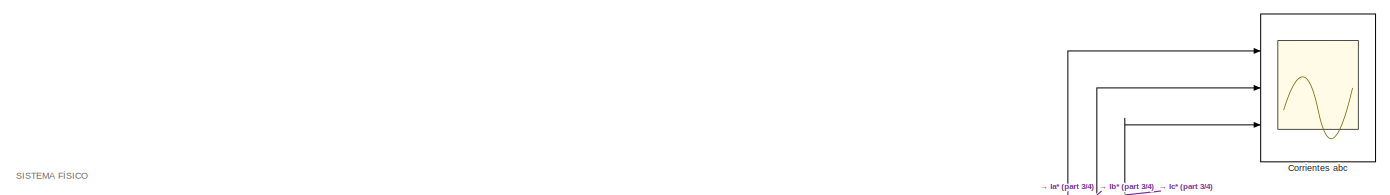
[diagram: root canvas - part 1/4, top right region]
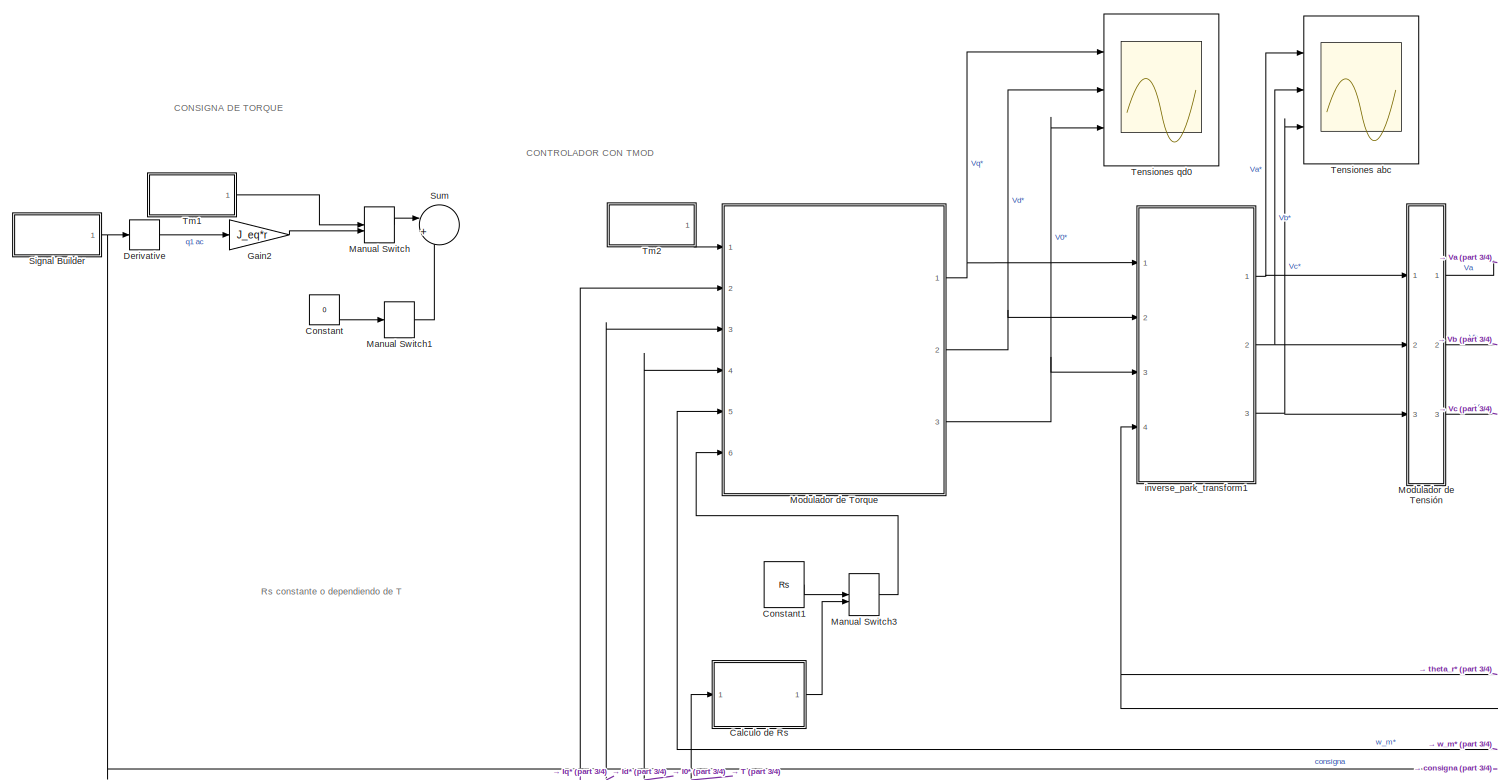
[diagram: root canvas - part 2/4, middle left region]
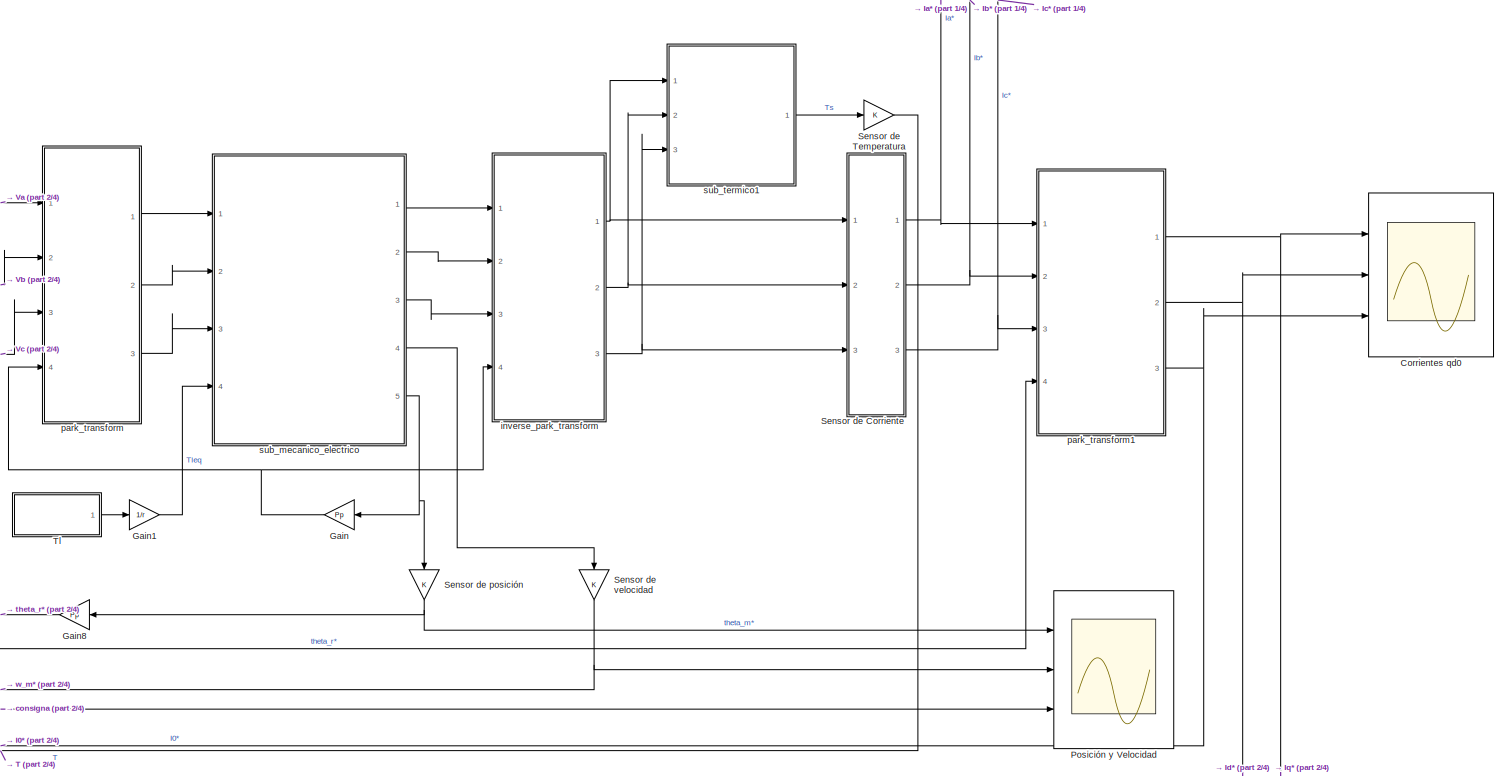
[diagram: root canvas - part 3/4, middle right region]
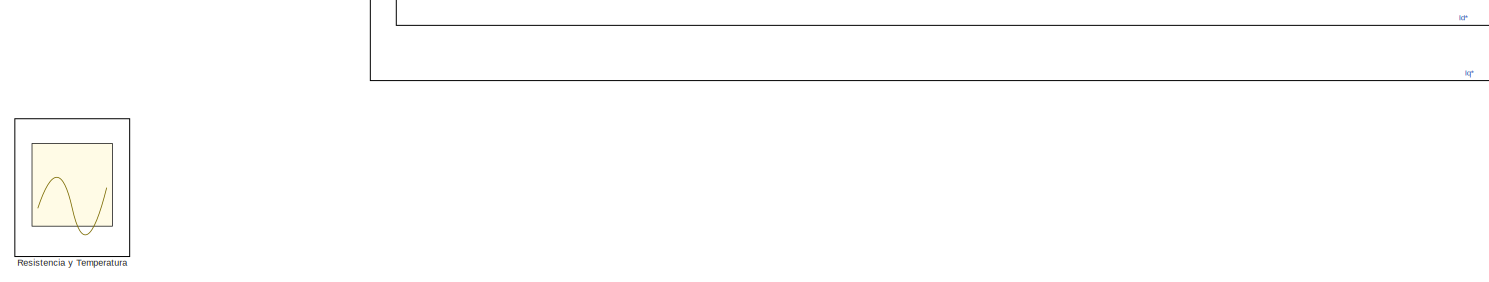
[diagram: root canvas - part 4/4, bottom left region]
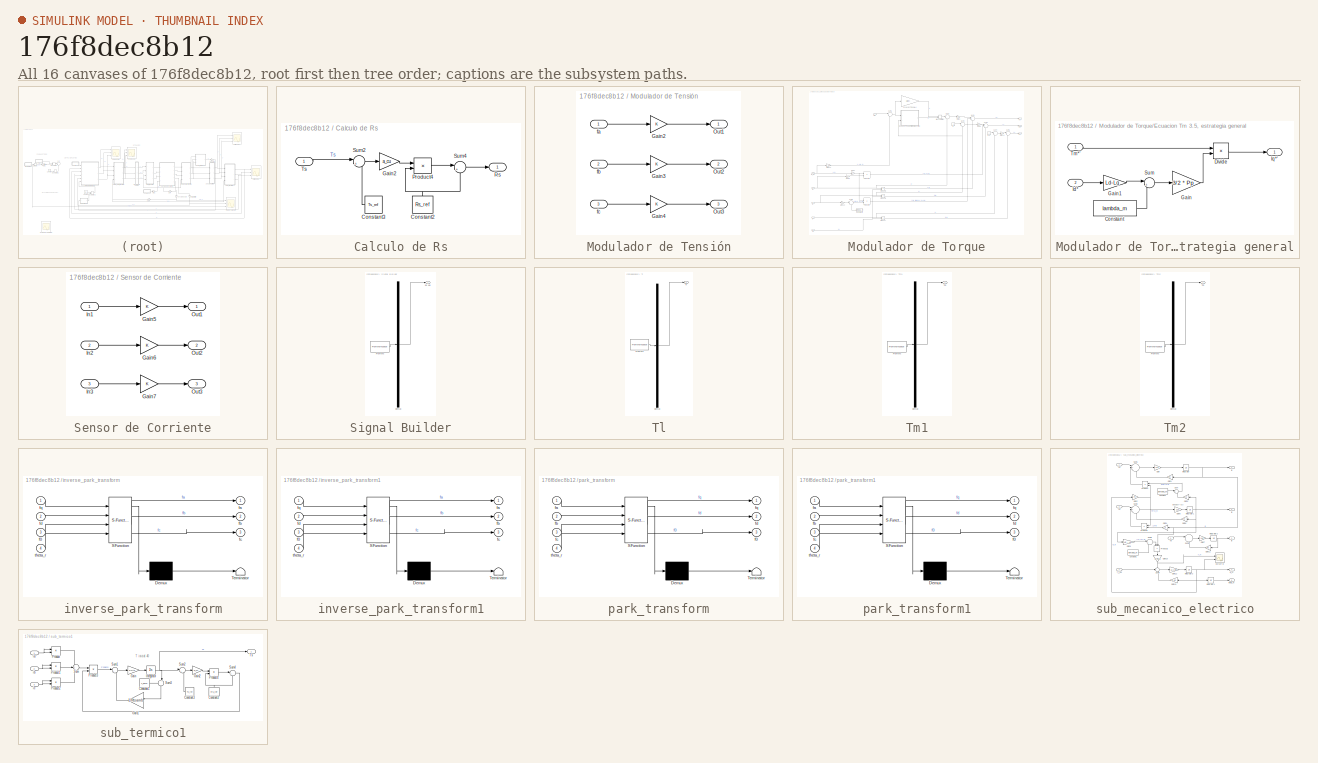
[diagram: thumbnail index - all 16 canvases of the model, root first then tree order]
MODEL slx_176f8dec8b12
KIND model
CONFIG AbsTol = auto
CONFIG EnableMultiTasking = off
CONFIG FixedStep = auto
CONFIG MaxStep = 0.0001
CONFIG MinStep = auto
CONFIG RelTol = 1e-3
CONFIG SampleTimeConstraint = Unconstrained
CONFIG SolverName = VariableStepAuto
CONFIG StartTime = 0.0
CONFIG StopTime = 25
BLOCK [SubSystem] Calculo de Rs
  Ports = [1, 1]
  RequestExecContextInheritance = off
BLOCK [Constant] Calculo de Rs/Constant2
  NameLocation = right
  Value = Rs_ref
BLOCK [Constant] Calculo de Rs/Constant3
  Value = Ts_ref
BLOCK [Gain] Calculo de Rs/Gain2
  Gain = a_cu
BLOCK [Product] Calculo de Rs/Product4
  Ports = [2, 1]
BLOCK [Outport] Calculo de Rs/Rs
BLOCK [Sum] Calculo de Rs/Sum2
  Inputs = |+-
  Ports = [2, 1]
BLOCK [Sum] Calculo de Rs/Sum4
  Inputs = |++
  Ports = [2, 1]
BLOCK [Inport] Calculo de Rs/Ts
BLOCK [Constant] Constant
  Value = 0
BLOCK [Constant] Constant1
  Value = Rs
BLOCK [Scope] Corrientes abc
  Floating = off
  NumInputPorts = 3
  Ports = [3]
  ScopeSpecificationString = Simulink.scopes.TimeScopeBlockCfg('CurrentConfiguration', extmgr.ConfigurationSet(extmgr.Configuration('Core','General UI',true,'FigureColor',[0.156862745098039 0.156862745098039 0.156862745098039]),extmgr.Configuration('Core','Source UI',true),extmgr.Configuration('Sources','WiredSimulink',true,'DataLoggingVariableName','Corrientes_abc','DataLogging',true,'DataLoggingSaveFormat','StructureWithTim...<+1602ch>
BLOCK [Scope] Corrientes qd0
  Floating = off
  NumInputPorts = 3
  Ports = [3]
  ScopeSpecificationString = Simulink.scopes.TimeScopeBlockCfg('CurrentConfiguration', extmgr.ConfigurationSet(extmgr.Configuration('Core','General UI',true,'FigureColor',[0.156862745098039 0.156862745098039 0.156862745098039]),extmgr.Configuration('Core','Source UI',true),extmgr.Configuration('Sources','WiredSimulink',true,'DataLogging',true,'DataLoggingVariableName','Corrientes_qd0','DataLoggingSaveFormat','StructureWithTim...<+1645ch>
BLOCK [Derivative] Derivative
BLOCK [Gain] Gain
  Gain = Pp
BLOCK [Gain] Gain1
  Gain = 1/r
BLOCK [Gain] Gain2
  Gain = J_eq*r
BLOCK [Gain] Gain8
  Gain = Pp
BLOCK [ManualSwitch] Manual Switch
  CurrentSetting = 0
BLOCK [ManualSwitch] Manual Switch1
  CurrentSetting = 0
BLOCK [ManualSwitch] Manual Switch3
  CurrentSetting = 0
BLOCK [SubSystem] Modulador de Tensión
  Ports = [3, 3]
  RequestExecContextInheritance = off
BLOCK [Gain] Modulador de Tensión/Gain2
BLOCK [Gain] Modulador de Tensión/Gain3
BLOCK [Gain] Modulador de Tensión/Gain4
BLOCK [Outport] Modulador de Tensión/Out1
BLOCK [Outport] Modulador de Tensión/Out2
  Port = 2
BLOCK [Outport] Modulador de Tensión/Out3
  Port = 3
BLOCK [Inport] Modulador de Tensión/fa
BLOCK [Inport] Modulador de Tensión/fb
  Port = 2
BLOCK [Inport] Modulador de Tensión/fc
  Port = 3
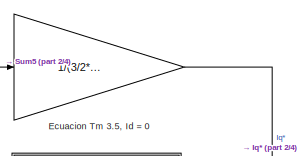
[diagram: Modulador de Torque - part 1/4, top center region]
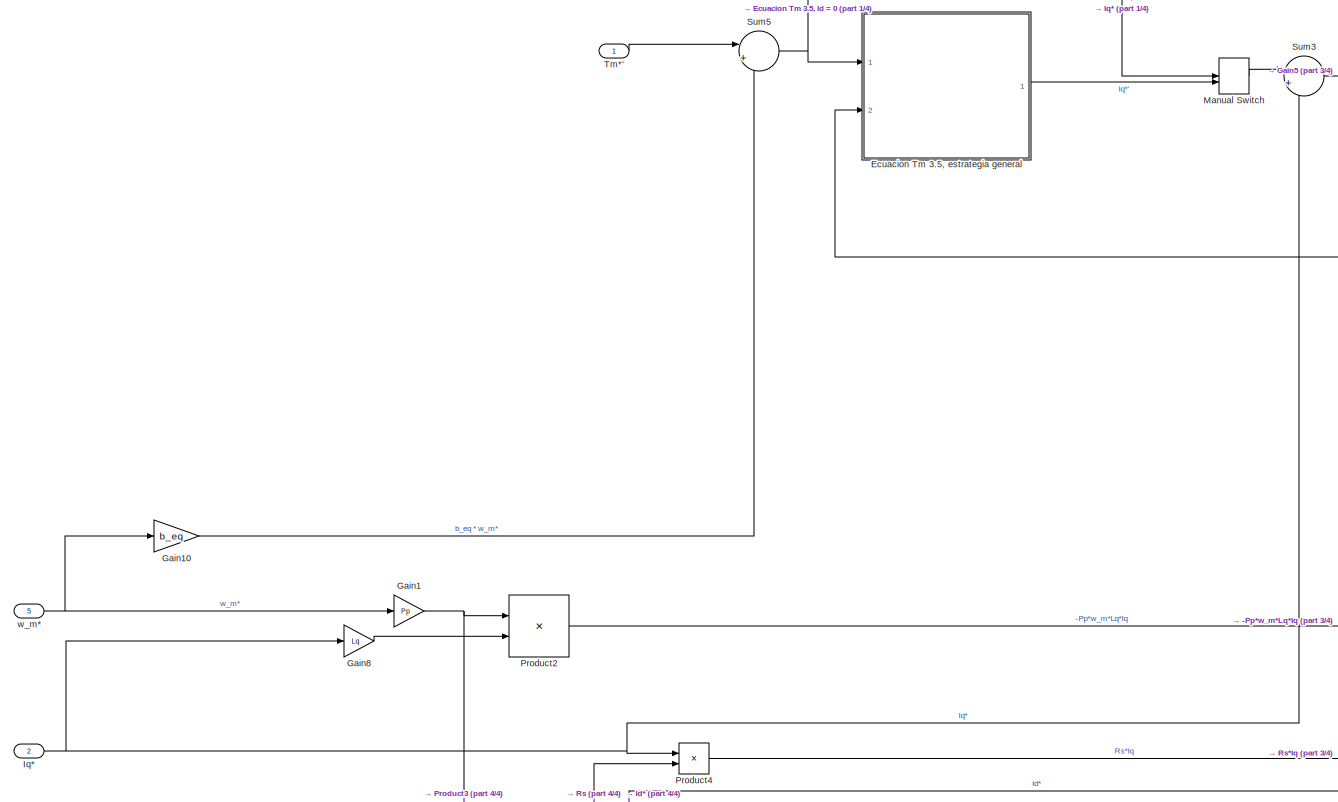
[diagram: Modulador de Torque - part 2/4, middle left region]
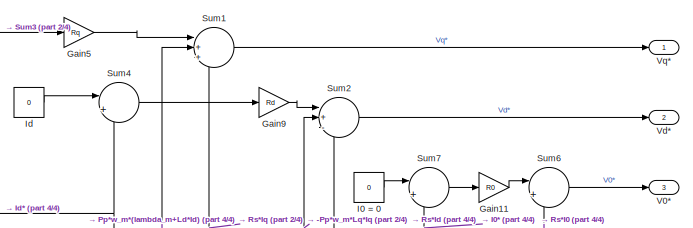
[diagram: Modulador de Torque - part 3/4, top right region]
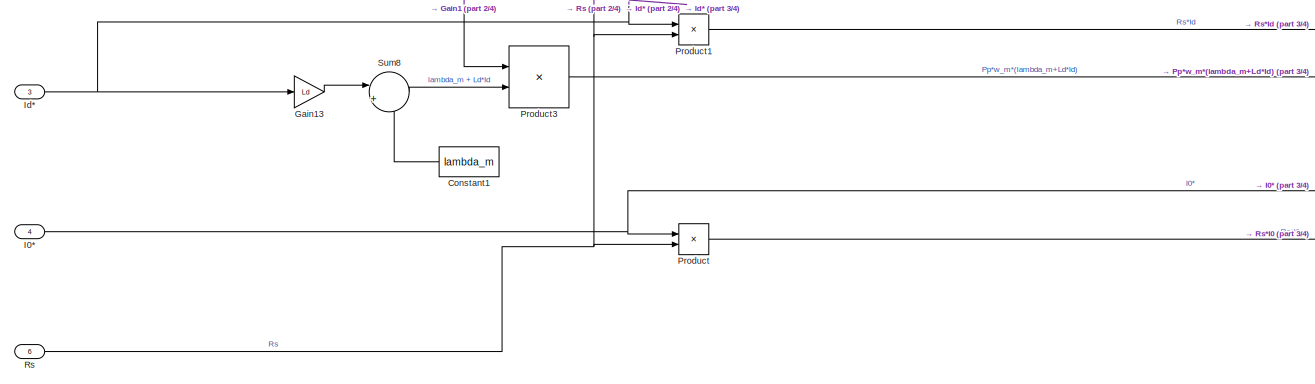
[diagram: Modulador de Torque - part 4/4, bottom left region]
BLOCK [SubSystem] Modulador de Torque
  Ports = [6, 3]
  RequestExecContextInheritance = off
BLOCK [Constant] Modulador de Torque/Constant1
  Value = lambda_m
BLOCK [Gain] Modulador de Torque/Ecuacion Tm 3.5, Id = 0
  Gain = 1/(3/2*Pp*lambda_m)
BLOCK [SubSystem] Modulador de Torque/Ecuacion Tm 3.5, estrategia general
  Ports = [2, 1]
  RequestExecContextInheritance = off
BLOCK [Constant] Modulador de Torque/Ecuacion Tm 3.5, estrategia general/Constant
  Value = lambda_m
BLOCK [Product] Modulador de Torque/Ecuacion Tm 3.5, estrategia general/Divide
  Inputs = */
  Ports = [2, 1]
BLOCK [Gain] Modulador de Torque/Ecuacion Tm 3.5, estrategia general/Gain
  Gain = 3/2 * Pp
BLOCK [Gain] Modulador de Torque/Ecuacion Tm 3.5, estrategia general/Gain1
  Gain = Ld-Lq
BLOCK [Inport] Modulador de Torque/Ecuacion Tm 3.5, estrategia general/Id*
  Port = 2
BLOCK [Outport] Modulador de Torque/Ecuacion Tm 3.5, estrategia general/Iq*'
BLOCK [Sum] Modulador de Torque/Ecuacion Tm 3.5, estrategia general/Sum
  Inputs = |++
  Ports = [2, 1]
BLOCK [Inport] Modulador de Torque/Ecuacion Tm 3.5, estrategia general/Tm*'
BLOCK [Gain] Modulador de Torque/Gain1
  Gain = Pp
BLOCK [Gain] Modulador de Torque/Gain10
  Gain = b_eq
BLOCK [Gain] Modulador de Torque/Gain11
  Gain = R0
BLOCK [Gain] Modulador de Torque/Gain13
  Gain = Ld
BLOCK [Gain] Modulador de Torque/Gain5
  Gain = Rq
BLOCK [Gain] Modulador de Torque/Gain8
  Gain = Lq
BLOCK [Gain] Modulador de Torque/Gain9
  Gain = Rd
BLOCK [Constant] Modulador de Torque/I0 = 0
  Value = 0
BLOCK [Inport] Modulador de Torque/I0*
  Port = 4
BLOCK [Constant] Modulador de Torque/Id
  Value = 0
BLOCK [Inport] Modulador de Torque/Id*
  Port = 3
BLOCK [Inport] Modulador de Torque/Iq*
  Port = 2
BLOCK [ManualSwitch] Modulador de Torque/Manual Switch
  CurrentSetting = 0
BLOCK [Product] Modulador de Torque/Product
  Ports = [2, 1]
BLOCK [Product] Modulador de Torque/Product1
  Ports = [2, 1]
BLOCK [Product] Modulador de Torque/Product2
  Ports = [2, 1]
BLOCK [Product] Modulador de Torque/Product3
  Ports = [2, 1]
BLOCK [Product] Modulador de Torque/Product4
  Ports = [2, 1]
BLOCK [Inport] Modulador de Torque/Rs
  Port = 6
BLOCK [Sum] Modulador de Torque/Sum1
  Inputs = |+++
  Ports = [3, 1]
BLOCK [Sum] Modulador de Torque/Sum2
  Inputs = |+-+
  Ports = [3, 1]
BLOCK [Sum] Modulador de Torque/Sum3
  Inputs = |+-
  Ports = [2, 1]
BLOCK [Sum] Modulador de Torque/Sum4
  Inputs = |+-
  Ports = [2, 1]
BLOCK [Sum] Modulador de Torque/Sum5
  Inputs = |++
  Ports = [2, 1]
BLOCK [Sum] Modulador de Torque/Sum6
  Inputs = |++
  Ports = [2, 1]
BLOCK [Sum] Modulador de Torque/Sum7
  Inputs = |+-
  Ports = [2, 1]
BLOCK [Sum] Modulador de Torque/Sum8
  Inputs = |++
  Ports = [2, 1]
BLOCK [Inport] Modulador de Torque/Tm*'
BLOCK [Outport] Modulador de Torque/V0*
  Port = 3
BLOCK [Outport] Modulador de Torque/Vd*
  Port = 2
BLOCK [Outport] Modulador de Torque/Vq*
BLOCK [Inport] Modulador de Torque/w_m*
  Port = 5
BLOCK [Scope] Posición y Velocidad
  Floating = off
  NumInputPorts = 3
  Ports = [3]
  ScopeSpecificationString = Simulink.scopes.TimeScopeBlockCfg('CurrentConfiguration', extmgr.ConfigurationSet(extmgr.Configuration('Core','General UI',true,'FigureColor',[0.156862745098039 0.156862745098039 0.156862745098039]),extmgr.Configuration('Core','Source UI',true),extmgr.Configuration('Sources','WiredSimulink',true,'DataLoggingVariableName','Pos_Vel','DataLogging',true,'DataLoggingSaveFormat','StructureWithTime'),ext...<+1599ch>
BLOCK [Scope] Resistencia y Temperatura
  Floating = off
  NumInputPorts = 2
  Ports = [2]
  ScopeSpecificationString = Simulink.scopes.TimeScopeBlockCfg('CurrentConfiguration', extmgr.ConfigurationSet(extmgr.Configuration('Core','General UI',true,'FigureColor',[0.156862745098039 0.156862745098039 0.156862745098039]),extmgr.Configuration('Core','Source UI',true),extmgr.Configuration('Sources','WiredSimulink',true,'DataLoggingVariableName','Subs_Termico','DataLogging',true,'DataLoggingSaveFormat','StructureWithTime'...<+1588ch>
BLOCK [SubSystem] Sensor de Corriente
  Ports = [3, 3]
  RequestExecContextInheritance = off
BLOCK [Gain] Sensor de Corriente/Gain5
BLOCK [Gain] Sensor de Corriente/Gain6
BLOCK [Gain] Sensor de Corriente/Gain7
BLOCK [Inport] Sensor de Corriente/In1
BLOCK [Inport] Sensor de Corriente/In2
  Port = 2
BLOCK [Inport] Sensor de Corriente/In3
  Port = 3
BLOCK [Outport] Sensor de Corriente/Out1
BLOCK [Outport] Sensor de Corriente/Out2
  Port = 2
BLOCK [Outport] Sensor de Corriente/Out3
  Port = 3
BLOCK [Gain] Sensor de Temperatura
BLOCK [Gain] Sensor de posición
  NameLocation = right
BLOCK [Gain] Sensor de velocidad
  NameLocation = right
BLOCK [SubSystem] Signal Builder
  ClipboardFcn = sigbuilder_block('clipboard');
  CloseFcn = sigbuilder_block('close');
  ContinueFcn = sigbuilder_block('continue');
  CopyFcn = sigbuilder_block('copy');
  DeleteFcn = sigbuilder_block('delete');
  LoadFcn = sigbuilder_block('load');
  MaskHideContents = on
  ModelCloseFcn = sigbuilder_block('modelClose');
  NameChangeFcn = sigbuilder_block('namechange');
  OpenFcn = sigbuilder_block('open',[437.6 199.2 550.4 400 ]);
  PauseFcn = sigbuilder_block('pause');
  Ports = [0, 1]
  PreSaveFcn = sigbuilder_block('preSave');
  RequestExecContextInheritance = off
  StartFcn = sigbuilder_block('start');
  StopFcn = sigbuilder_block('stop');
  Tag = STV Subsys
BLOCK [Demux] Signal Builder/Demux
  DisplayOption = none
  Outputs = 1
  Ports = [1, 1]
  Tag = STV Demux
BLOCK [FromWorkspace] Signal Builder/FromWs
  Tag = STV FromWs
  VariableName = tuvar
BLOCK [Outport] Signal Builder/q1 vel
  Tag = STV Outport
BLOCK [Sum] Sum
  Inputs = |++
  Ports = [2, 1]
BLOCK [Scope] Tensiones abc
  Floating = off
  NumInputPorts = 3
  Ports = [3]
  ScopeSpecificationString = Simulink.scopes.TimeScopeBlockCfg('CurrentConfiguration', extmgr.ConfigurationSet(extmgr.Configuration('Core','General UI',true,'FigureColor',[0.156862745098039 0.156862745098039 0.156862745098039]),extmgr.Configuration('Core','Source UI',true),extmgr.Configuration('Sources','WiredSimulink',true,'DataLoggingVariableName','Tensiones_abc','DataLogging',true,'DataLoggingSaveFormat','StructureWithTime...<+1641ch>
BLOCK [Scope] Tensiones qd0
  Floating = off
  NumInputPorts = 3
  Ports = [3]
  ScopeSpecificationString = Simulink.scopes.TimeScopeBlockCfg('CurrentConfiguration', extmgr.ConfigurationSet(extmgr.Configuration('Core','General UI',true,'FigureColor',[0.156862745098039 0.156862745098039 0.156862745098039]),extmgr.Configuration('Core','Source UI',true),extmgr.Configuration('Sources','WiredSimulink',true,'DataLoggingVariableName','Tensiones_qd0','DataLogging',true,'DataLoggingSaveFormat','StructureWithTime...<+1595ch>
BLOCK [SubSystem] Tl
  ClipboardFcn = sigbuilder_block('clipboard');
  CloseFcn = sigbuilder_block('close');
  ContinueFcn = sigbuilder_block('continue');
  CopyFcn = sigbuilder_block('copy');
  DeleteFcn = sigbuilder_block('delete');
  LoadFcn = sigbuilder_block('load');
  MaskHideContents = on
  ModelCloseFcn = sigbuilder_block('modelClose');
  NameChangeFcn = sigbuilder_block('namechange');
  OpenFcn = sigbuilder_block('open',[96.5 181 429 386 ]);
  PauseFcn = sigbuilder_block('pause');
  Ports = [0, 1]
  PreSaveFcn = sigbuilder_block('preSave');
  RequestExecContextInheritance = off
  StartFcn = sigbuilder_block('start');
  StopFcn = sigbuilder_block('stop');
  Tag = STV Subsys
BLOCK [Demux] Tl/Demux
  DisplayOption = none
  Outputs = 1
  Ports = [1, 1]
  Tag = STV Demux
BLOCK [FromWorkspace] Tl/FromWs
  Tag = STV FromWs
  VariableName = tuvar
BLOCK [Outport] Tl/Tl
  Tag = STV Outport
BLOCK [SubSystem] Tm1
  ClipboardFcn = sigbuilder_block('clipboard');
  CloseFcn = sigbuilder_block('close');
  ContinueFcn = sigbuilder_block('continue');
  CopyFcn = sigbuilder_block('copy');
  DeleteFcn = sigbuilder_block('delete');
  LoadFcn = sigbuilder_block('load');
  MaskHideContents = on
  ModelCloseFcn = sigbuilder_block('modelClose');
  NameChangeFcn = sigbuilder_block('namechange');
  OpenFcn = sigbuilder_block('open',[5.5 30 1269 678 ]);
  PauseFcn = sigbuilder_block('pause');
  Ports = [0, 1]
  PreSaveFcn = sigbuilder_block('preSave');
  RequestExecContextInheritance = off
  StartFcn = sigbuilder_block('start');
  StopFcn = sigbuilder_block('stop');
  Tag = STV Subsys
BLOCK [Demux] Tm1/Demux
  DisplayOption = none
  Outputs = 1
  Ports = [1, 1]
  Tag = STV Demux
BLOCK [FromWorkspace] Tm1/FromWs
  Tag = STV FromWs
  VariableName = tuvar
BLOCK [Outport] Tm1/Tm
  Tag = STV Outport
BLOCK [SubSystem] Tm2
  ClipboardFcn = sigbuilder_block('clipboard');
  CloseFcn = sigbuilder_block('close');
  ContinueFcn = sigbuilder_block('continue');
  CopyFcn = sigbuilder_block('copy');
  DeleteFcn = sigbuilder_block('delete');
  LoadFcn = sigbuilder_block('load');
  MaskHideContents = on
  ModelCloseFcn = sigbuilder_block('modelClose');
  NameChangeFcn = sigbuilder_block('namechange');
  OpenFcn = sigbuilder_block('open',[5.5 30 1269 678 ]);
  PauseFcn = sigbuilder_block('pause');
  Ports = [0, 1]
  PreSaveFcn = sigbuilder_block('preSave');
  RequestExecContextInheritance = off
  StartFcn = sigbuilder_block('start');
  StopFcn = sigbuilder_block('stop');
  Tag = STV Subsys
BLOCK [Demux] Tm2/Demux
  DisplayOption = none
  Outputs = 1
  Ports = [1, 1]
  Tag = STV Demux
BLOCK [FromWorkspace] Tm2/FromWs
  Tag = STV FromWs
  VariableName = tuvar
BLOCK [Outport] Tm2/Tm
  Tag = STV Outport
BLOCK [SubSystem] inverse_park_transform
  ErrorFcn = Stateflow.Translate.translate
  PermitHierarchicalResolution = ExplicitOnly
  Ports = [4, 3]
  RequestExecContextInheritance = off
  SFBlockType = MATLAB Function
  TreatAsAtomicUnit = on
BLOCK [Demux] inverse_park_transform/ Demux 
  Outputs = 1
  Ports = [1, 1]
BLOCK [S-Function] inverse_park_transform/ SFunction 
  EnableBusSupport = on
  FunctionName = sf_sfun
  PortCounts = [4 4]
  Ports = [4, 4]
  SFcnIsStateOwnerBlock = off
  SFunctionDeploymentMode = off
  Tag = Stateflow S-Function 27
BLOCK [Terminator] inverse_park_transform/ Terminator 
BLOCK [Inport] inverse_park_transform/f0
  Port = 3
BLOCK [Outport] inverse_park_transform/fa
BLOCK [Outport] inverse_park_transform/fb
  Port = 2
BLOCK [Outport] inverse_park_transform/fc
  Port = 3
BLOCK [Inport] inverse_park_transform/fd
  Port = 2
BLOCK [Inport] inverse_park_transform/fq
BLOCK [Inport] inverse_park_transform/theta_r
  Port = 4
BLOCK [SubSystem] inverse_park_transform1
  ErrorFcn = Stateflow.Translate.translate
  PermitHierarchicalResolution = ExplicitOnly
  Ports = [4, 3]
  RequestExecContextInheritance = off
  SFBlockType = MATLAB Function
  TreatAsAtomicUnit = on
BLOCK [Demux] inverse_park_transform1/ Demux 
  Outputs = 1
  Ports = [1, 1]
BLOCK [S-Function] inverse_park_transform1/ SFunction 
  EnableBusSupport = on
  FunctionName = sf_sfun
  PortCounts = [4 4]
  Ports = [4, 4]
  SFcnIsStateOwnerBlock = off
  SFunctionDeploymentMode = off
  Tag = Stateflow S-Function 28
BLOCK [Terminator] inverse_park_transform1/ Terminator 
BLOCK [Inport] inverse_park_transform1/f0
  Port = 3
BLOCK [Outport] inverse_park_transform1/fa
BLOCK [Outport] inverse_park_transform1/fb
  Port = 2
BLOCK [Outport] inverse_park_transform1/fc
  Port = 3
BLOCK [Inport] inverse_park_transform1/fd
  Port = 2
BLOCK [Inport] inverse_park_transform1/fq
BLOCK [Inport] inverse_park_transform1/theta_r
  Port = 4
BLOCK [SubSystem] park_transform
  ErrorFcn = Stateflow.Translate.translate
  PermitHierarchicalResolution = ExplicitOnly
  Ports = [4, 3]
  RequestExecContextInheritance = off
  SFBlockType = MATLAB Function
  TreatAsAtomicUnit = on
BLOCK [Demux] park_transform/ Demux 
  Outputs = 1
  Ports = [1, 1]
BLOCK [S-Function] park_transform/ SFunction 
  EnableBusSupport = on
  FunctionName = sf_sfun
  PortCounts = [4 4]
  Ports = [4, 4]
  SFcnIsStateOwnerBlock = off
  SFunctionDeploymentMode = off
  Tag = Stateflow S-Function 29
BLOCK [Terminator] park_transform/ Terminator 
BLOCK [Outport] park_transform/f0
  Port = 3
BLOCK [Inport] park_transform/fa
BLOCK [Inport] park_transform/fb
  Port = 2
BLOCK [Inport] park_transform/fc
  Port = 3
BLOCK [Outport] park_transform/fd
  Port = 2
BLOCK [Outport] park_transform/fq
BLOCK [Inport] park_transform/theta_r
  Port = 4
BLOCK [SubSystem] park_transform1
  ErrorFcn = Stateflow.Translate.translate
  PermitHierarchicalResolution = ExplicitOnly
  Ports = [4, 3]
  RequestExecContextInheritance = off
  SFBlockType = MATLAB Function
  TreatAsAtomicUnit = on
BLOCK [Demux] park_transform1/ Demux 
  Outputs = 1
  Ports = [1, 1]
BLOCK [S-Function] park_transform1/ SFunction 
  EnableBusSupport = on
  FunctionName = sf_sfun
  PortCounts = [4 4]
  Ports = [4, 4]
  SFcnIsStateOwnerBlock = off
  SFunctionDeploymentMode = off
  Tag = Stateflow S-Function 30
BLOCK [Terminator] park_transform1/ Terminator 
BLOCK [Outport] park_transform1/f0
  Port = 3
BLOCK [Inport] park_transform1/fa
BLOCK [Inport] park_transform1/fb
  Port = 2
BLOCK [Inport] park_transform1/fc
  Port = 3
BLOCK [Outport] park_transform1/fd
  Port = 2
BLOCK [Outport] park_transform1/fq
BLOCK [Inport] park_transform1/theta_r
  Port = 4
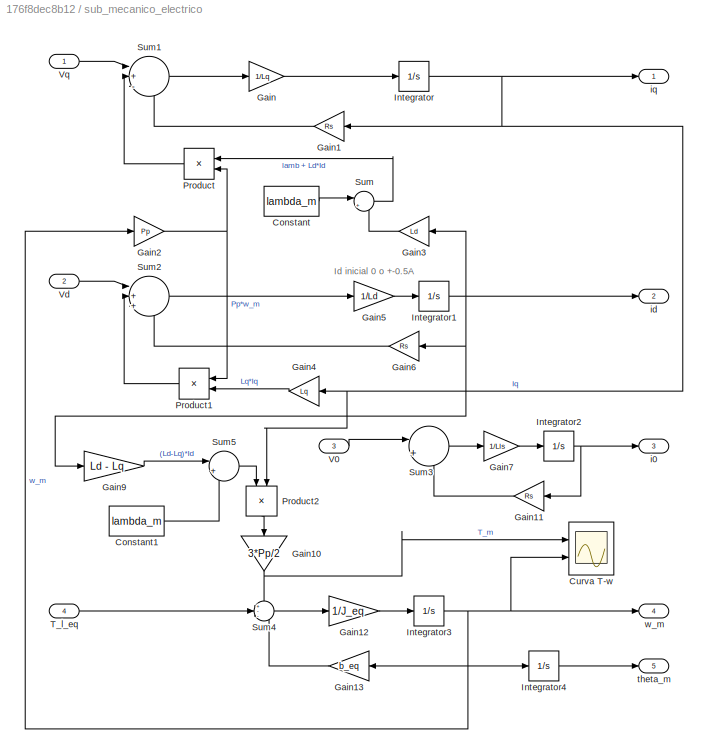
BLOCK [SubSystem] sub_mecanico_electrico
  Ports = [4, 5]
  RequestExecContextInheritance = off
BLOCK [Constant] sub_mecanico_electrico/Constant
  Value = lambda_m
BLOCK [Constant] sub_mecanico_electrico/Constant1
  Value = lambda_m
BLOCK [Scope] sub_mecanico_electrico/Curva T-w
  Floating = off
  NumInputPorts = 2
  Ports = [2]
  ScopeSpecificationString = Simulink.scopes.TimeScopeBlockCfg('CurrentConfiguration', extmgr.ConfigurationSet(extmgr.Configuration('Core','General UI',true,'FigureColor',[0.156862745098039 0.156862745098039 0.156862745098039]),extmgr.Configuration('Core','Source UI',true),extmgr.Configuration('Sources','WiredSimulink',true,'DataLoggingVariableName','Curva_Tw','DataLogging',true,'DataLoggingSaveFormat','StructureWithTime'),ex...<+1511ch>
BLOCK [Gain] sub_mecanico_electrico/Gain
  Gain = 1/Lq
BLOCK [Gain] sub_mecanico_electrico/Gain1
  Gain = Rs
BLOCK [Gain] sub_mecanico_electrico/Gain10
  Gain = 3*Pp/2
  NameLocation = left
BLOCK [Gain] sub_mecanico_electrico/Gain11
  Gain = Rs
BLOCK [Gain] sub_mecanico_electrico/Gain12
  Gain = 1/J_eq
BLOCK [Gain] sub_mecanico_electrico/Gain13
  Gain = b_eq
BLOCK [Gain] sub_mecanico_electrico/Gain2
  Gain = Pp
BLOCK [Gain] sub_mecanico_electrico/Gain3
  Gain = Ld
BLOCK [Gain] sub_mecanico_electrico/Gain4
  Gain = Lq
  NameLocation = top
BLOCK [Gain] sub_mecanico_electrico/Gain5
  Gain = 1/Ld
BLOCK [Gain] sub_mecanico_electrico/Gain6
  Gain = Rs
BLOCK [Gain] sub_mecanico_electrico/Gain7
  Gain = 1/Lls
BLOCK [Gain] sub_mecanico_electrico/Gain9
  Gain = Ld - Lq
BLOCK [Integrator] sub_mecanico_electrico/Integrator
  Ports = [1, 1]
BLOCK [Integrator] sub_mecanico_electrico/Integrator1
  InitialCondition = Id_0
  Ports = [1, 1]
BLOCK [Integrator] sub_mecanico_electrico/Integrator2
  Ports = [1, 1]
BLOCK [Integrator] sub_mecanico_electrico/Integrator3
  Ports = [1, 1]
BLOCK [Integrator] sub_mecanico_electrico/Integrator4
  Ports = [1, 1]
BLOCK [Product] sub_mecanico_electrico/Product
  Ports = [2, 1]
BLOCK [Product] sub_mecanico_electrico/Product1
  Ports = [2, 1]
BLOCK [Product] sub_mecanico_electrico/Product2
  NameLocation = left
  Ports = [2, 1]
BLOCK [Sum] sub_mecanico_electrico/Sum
  Inputs = |++
  Ports = [2, 1]
BLOCK [Sum] sub_mecanico_electrico/Sum1
  Inputs = |+--
  Ports = [3, 1]
BLOCK [Sum] sub_mecanico_electrico/Sum2
  Inputs = |++-
  Ports = [3, 1]
BLOCK [Sum] sub_mecanico_electrico/Sum3
  Inputs = |+-
  Ports = [2, 1]
BLOCK [Sum] sub_mecanico_electrico/Sum4
  Inputs = +--
  Ports = [3, 1]
BLOCK [Sum] sub_mecanico_electrico/Sum5
  Inputs = |++
  Ports = [2, 1]
BLOCK [Inport] sub_mecanico_electrico/T_l_eq
  Port = 4
BLOCK [Inport] sub_mecanico_electrico/V0
  Port = 3
BLOCK [Inport] sub_mecanico_electrico/Vd
  Port = 2
BLOCK [Inport] sub_mecanico_electrico/Vq
BLOCK [Outport] sub_mecanico_electrico/i0
  Port = 3
BLOCK [Outport] sub_mecanico_electrico/id
  Port = 2
BLOCK [Outport] sub_mecanico_electrico/iq
BLOCK [Outport] sub_mecanico_electrico/theta_m
  Port = 5
BLOCK [Outport] sub_mecanico_electrico/w_m
  Port = 4
BLOCK [SubSystem] sub_termico1
  Ports = [3, 1]
  RequestExecContextInheritance = off
BLOCK [Constant] sub_termico1/Constant1
  Value = T_amb
BLOCK [Constant] sub_termico1/Constant2
  NameLocation = right
  Value = Rs_ref
BLOCK [Constant] sub_termico1/Constant3
  Value = Ts_ref
BLOCK [Gain] sub_termico1/Gain
  Gain = 1/Cts
BLOCK [Gain] sub_termico1/Gain1
  Gain = 1/Rtsamb
BLOCK [Gain] sub_termico1/Gain2
  Gain = a_cu
BLOCK [Integrator] sub_termico1/Integrator
  InitialCondition = T_0
  Ports = [1, 1]
BLOCK [Product] sub_termico1/Product
  Ports = [2, 1]
BLOCK [Product] sub_termico1/Product1
  Ports = [2, 1]
BLOCK [Product] sub_termico1/Product2
  Ports = [2, 1]
BLOCK [Product] sub_termico1/Product3
  Ports = [2, 1]
BLOCK [Product] sub_termico1/Product4
  Ports = [2, 1]
BLOCK [Sum] sub_termico1/Sum
  Inputs = +++
  Ports = [3, 1]
BLOCK [Sum] sub_termico1/Sum1
  Inputs = |+-
  Ports = [2, 1]
BLOCK [Sum] sub_termico1/Sum2
  Inputs = |+-
  Ports = [2, 1]
BLOCK [Sum] sub_termico1/Sum3
  Inputs = -+|
  NameLocation = right
  Ports = [2, 1]
BLOCK [Sum] sub_termico1/Sum4
  Inputs = |++
  Ports = [2, 1]
BLOCK [Outport] sub_termico1/Ts
BLOCK [Inport] sub_termico1/ia
BLOCK [Inport] sub_termico1/ib
  Port = 2
BLOCK [Inport] sub_termico1/ic
  Port = 3
ANNOTATION (root): SISTEMA FÍSICO
ANNOTATION (root): CONSIGNA DE TORQUE
ANNOTATION (root): CONTROLADOR CON TMOD
ANNOTATION (root): Rs constante o dependiendo de T
ANNOTATION sub_mecanico_electrico: Id inicial 0 o +-0.5A
ANNOTATION sub_termico1: T inicial 40
NET Calculo de Rs/Constant2:1 -> Calculo de Rs/Product4:2, Calculo de Rs/Sum4:2
LINE Calculo de Rs/Constant3:1 -> Calculo de Rs/Sum2:2
LINE Calculo de Rs/Gain2:1 -> Calculo de Rs/Product4:1
LINE Calculo de Rs/Product4:1 -> Calculo de Rs/Sum4:1
LINE Calculo de Rs/Sum2:1 -> Calculo de Rs/Gain2:1
LINE Calculo de Rs/Sum4:1 -> Calculo de Rs/Rs:1
LINE Calculo de Rs/Ts:1 -> Calculo de Rs/Sum2:1
LINE Calculo de Rs:1 -> Manual Switch3:2
LINE Constant1:1 -> Manual Switch3:1
LINE Constant:1 -> Manual Switch1:1
LINE Derivative:1 -> Gain2:1
LINE Gain1:1 -> sub_mecanico_electrico:4
LINE Gain2:1 -> Manual Switch:2
NET Gain8:1 -> inverse_park_transform1:4, park_transform1:4
NET Gain:1 -> inverse_park_transform:4, park_transform:4
LINE Manual Switch1:1 -> Sum:2
LINE Manual Switch3:1 -> Modulador de Torque:6
LINE Manual Switch:1 -> Sum:1
LINE Modulador de Tensión/Gain2:1 -> Modulador de Tensión/Out1:1
LINE Modulador de Tensión/Gain3:1 -> Modulador de Tensión/Out2:1
LINE Modulador de Tensión/Gain4:1 -> Modulador de Tensión/Out3:1
LINE Modulador de Tensión/fa:1 -> Modulador de Tensión/Gain2:1
LINE Modulador de Tensión/fb:1 -> Modulador de Tensión/Gain3:1
LINE Modulador de Tensión/fc:1 -> Modulador de Tensión/Gain4:1
LINE Modulador de Tensión:1 -> park_transform:1
LINE Modulador de Tensión:2 -> park_transform:2
LINE Modulador de Tensión:3 -> park_transform:3
LINE Modulador de Torque/Constant1:1 -> Modulador de Torque/Sum8:2
LINE Modulador de Torque/Ecuacion Tm 3.5, Id = 0:1 -> Modulador de Torque/Manual Switch:1
LINE Modulador de Torque/Ecuacion Tm 3.5, estrategia general/Constant:1 -> Modulador de Torque/Ecuacion Tm 3.5, estrategia general/Sum:2
LINE Modulador de Torque/Ecuacion Tm 3.5, estrategia general/Divide:1 -> Modulador de Torque/Ecuacion Tm 3.5, estrategia general/Iq*':1
LINE Modulador de Torque/Ecuacion Tm 3.5, estrategia general/Gain1:1 -> Modulador de Torque/Ecuacion Tm 3.5, estrategia general/Sum:1
LINE Modulador de Torque/Ecuacion Tm 3.5, estrategia general/Gain:1 -> Modulador de Torque/Ecuacion Tm 3.5, estrategia general/Divide:2
LINE Modulador de Torque/Ecuacion Tm 3.5, estrategia general/Id*:1 -> Modulador de Torque/Ecuacion Tm 3.5, estrategia general/Gain1:1
LINE Modulador de Torque/Ecuacion Tm 3.5, estrategia general/Sum:1 -> Modulador de Torque/Ecuacion Tm 3.5, estrategia general/Gain:1
LINE Modulador de Torque/Ecuacion Tm 3.5, estrategia general/Tm*':1 -> Modulador de Torque/Ecuacion Tm 3.5, estrategia general/Divide:1
LINE Modulador de Torque/Ecuacion Tm 3.5, estrategia general:1 -> Modulador de Torque/Manual Switch:2
LINE Modulador de Torque/Gain10:1 -> Modulador de Torque/Sum5:2
LINE Modulador de Torque/Gain11:1 -> Modulador de Torque/Sum6:1
LINE Modulador de Torque/Gain13:1 -> Modulador de Torque/Sum8:1
NET Modulador de Torque/Gain1:1 -> Modulador de Torque/Product2:1, Modulador de Torque/Product3:1
LINE Modulador de Torque/Gain5:1 -> Modulador de Torque/Sum1:1
LINE Modulador de Torque/Gain8:1 -> Modulador de Torque/Product2:2
LINE Modulador de Torque/Gain9:1 -> Modulador de Torque/Sum2:1
LINE Modulador de Torque/I0 = 0:1 -> Modulador de Torque/Sum7:1
NET Modulador de Torque/I0*:1 -> Modulador de Torque/Product:1, Modulador de Torque/Sum7:2
NET Modulador de Torque/Id*:1 -> Modulador de Torque/Ecuacion Tm 3.5, estrategia general:2, Modulador de Torque/Gain13:1, Modulador de Torque/Product1:1, Modulador de Torque/Sum4:2
LINE Modulador de Torque/Id:1 -> Modulador de Torque/Sum4:1
NET Modulador de Torque/Iq*:1 -> Modulador de Torque/Gain8:1, Modulador de Torque/Product4:1, Modulador de Torque/Sum3:2
LINE Modulador de Torque/Manual Switch:1 -> Modulador de Torque/Sum3:1
LINE Modulador de Torque/Product1:1 -> Modulador de Torque/Sum2:3
LINE Modulador de Torque/Product2:1 -> Modulador de Torque/Sum2:2
LINE Modulador de Torque/Product3:1 -> Modulador de Torque/Sum1:2
LINE Modulador de Torque/Product4:1 -> Modulador de Torque/Sum1:3
LINE Modulador de Torque/Product:1 -> Modulador de Torque/Sum6:2
NET Modulador de Torque/Rs:1 -> Modulador de Torque/Product1:2, Modulador de Torque/Product4:2, Modulador de Torque/Product:2
LINE Modulador de Torque/Sum1:1 -> Modulador de Torque/Vq*:1
LINE Modulador de Torque/Sum2:1 -> Modulador de Torque/Vd*:1
LINE Modulador de Torque/Sum3:1 -> Modulador de Torque/Gain5:1
LINE Modulador de Torque/Sum4:1 -> Modulador de Torque/Gain9:1
NET Modulador de Torque/Sum5:1 -> Modulador de Torque/Ecuacion Tm 3.5, Id = 0:1, Modulador de Torque/Ecuacion Tm 3.5, estrategia general:1
LINE Modulador de Torque/Sum6:1 -> Modulador de Torque/V0*:1
LINE Modulador de Torque/Sum7:1 -> Modulador de Torque/Gain11:1
LINE Modulador de Torque/Sum8:1 -> Modulador de Torque/Product3:2
LINE Modulador de Torque/Tm*':1 -> Modulador de Torque/Sum5:1
NET Modulador de Torque/w_m*:1 -> Modulador de Torque/Gain10:1, Modulador de Torque/Gain1:1
NET Modulador de Torque:1 -> Tensiones qd0:1, inverse_park_transform1:1
NET Modulador de Torque:2 -> Tensiones qd0:2, inverse_park_transform1:2
NET Modulador de Torque:3 -> Tensiones qd0:3, inverse_park_transform1:3
LINE Sensor de Corriente/Gain5:1 -> Sensor de Corriente/Out1:1
LINE Sensor de Corriente/Gain6:1 -> Sensor de Corriente/Out2:1
LINE Sensor de Corriente/Gain7:1 -> Sensor de Corriente/Out3:1
LINE Sensor de Corriente/In1:1 -> Sensor de Corriente/Gain5:1
LINE Sensor de Corriente/In2:1 -> Sensor de Corriente/Gain6:1
LINE Sensor de Corriente/In3:1 -> Sensor de Corriente/Gain7:1
NET Sensor de Corriente:1 -> Corrientes abc:1, park_transform1:1
NET Sensor de Corriente:2 -> Corrientes abc:2, park_transform1:2
NET Sensor de Corriente:3 -> Corrientes abc:3, park_transform1:3
LINE Sensor de Temperatura:1 -> Calculo de Rs:1
NET Sensor de posición:1 -> Gain8:1, Posición y Velocidad:1
NET Sensor de velocidad:1 -> Modulador de Torque:5, Posición y Velocidad:2
NET Signal Builder:1 -> Derivative:1, Posición y Velocidad:3
LINE Tl:1 -> Gain1:1
LINE Tm1:1 -> Manual Switch:1
LINE Tm2:1 -> Modulador de Torque:1
NET inverse_park_transform1:1 -> Modulador de Tensión:1, Tensiones abc:1
NET inverse_park_transform1:2 -> Modulador de Tensión:2, Tensiones abc:2
NET inverse_park_transform1:3 -> Modulador de Tensión:3, Tensiones abc:3
NET inverse_park_transform:1 -> Sensor de Corriente:1, sub_termico1:1
NET inverse_park_transform:2 -> Sensor de Corriente:2, sub_termico1:2
NET inverse_park_transform:3 -> Sensor de Corriente:3, sub_termico1:3
NET park_transform1:1 -> Corrientes qd0:1, Modulador de Torque:2
NET park_transform1:2 -> Corrientes qd0:2, Modulador de Torque:3
NET park_transform1:3 -> Corrientes qd0:3, Modulador de Torque:4
LINE park_transform:1 -> sub_mecanico_electrico:1
LINE park_transform:2 -> sub_mecanico_electrico:2
LINE park_transform:3 -> sub_mecanico_electrico:3
LINE sub_mecanico_electrico/Constant1:1 -> sub_mecanico_electrico/Sum5:2
LINE sub_mecanico_electrico/Constant:1 -> sub_mecanico_electrico/Sum:1
NET sub_mecanico_electrico/Gain10:1 -> sub_mecanico_electrico/Curva T-w:1, sub_mecanico_electrico/Sum4:1
LINE sub_mecanico_electrico/Gain11:1 -> sub_mecanico_electrico/Sum3:2
LINE sub_mecanico_electrico/Gain12:1 -> sub_mecanico_electrico/Integrator3:1
LINE sub_mecanico_electrico/Gain13:1 -> sub_mecanico_electrico/Sum4:3
LINE sub_mecanico_electrico/Gain1:1 -> sub_mecanico_electrico/Sum1:3
NET sub_mecanico_electrico/Gain2:1 -> sub_mecanico_electrico/Product1:1, sub_mecanico_electrico/Product:2
LINE sub_mecanico_electrico/Gain3:1 -> sub_mecanico_electrico/Sum:2
LINE sub_mecanico_electrico/Gain4:1 -> sub_mecanico_electrico/Product1:2
LINE sub_mecanico_electrico/Gain5:1 -> sub_mecanico_electrico/Integrator1:1
LINE sub_mecanico_electrico/Gain6:1 -> sub_mecanico_electrico/Sum2:3
LINE sub_mecanico_electrico/Gain7:1 -> sub_mecanico_electrico/Integrator2:1
LINE sub_mecanico_electrico/Gain9:1 -> sub_mecanico_electrico/Sum5:1
LINE sub_mecanico_electrico/Gain:1 -> sub_mecanico_electrico/Integrator:1
NET sub_mecanico_electrico/Integrator1:1 -> sub_mecanico_electrico/Gain3:1, sub_mecanico_electrico/Gain6:1, sub_mecanico_electrico/Gain9:1, sub_mecanico_electrico/id:1
NET sub_mecanico_electrico/Integrator2:1 -> sub_mecanico_electrico/Gain11:1, sub_mecanico_electrico/i0:1
NET sub_mecanico_electrico/Integrator3:1 -> sub_mecanico_electrico/Curva T-w:2, sub_mecanico_electrico/Gain13:1, sub_mecanico_electrico/Gain2:1, sub_mecanico_electrico/Integrator4:1, sub_mecanico_electrico/w_m:1
LINE sub_mecanico_electrico/Integrator4:1 -> sub_mecanico_electrico/theta_m:1
NET sub_mecanico_electrico/Integrator:1 -> sub_mecanico_electrico/Gain1:1, sub_mecanico_electrico/Gain4:1, sub_mecanico_electrico/Product2:2, sub_mecanico_electrico/iq:1
LINE sub_mecanico_electrico/Product1:1 -> sub_mecanico_electrico/Sum2:2
LINE sub_mecanico_electrico/Product2:1 -> sub_mecanico_electrico/Gain10:1
LINE sub_mecanico_electrico/Product:1 -> sub_mecanico_electrico/Sum1:2
LINE sub_mecanico_electrico/Sum1:1 -> sub_mecanico_electrico/Gain:1
LINE sub_mecanico_electrico/Sum2:1 -> sub_mecanico_electrico/Gain5:1
LINE sub_mecanico_electrico/Sum3:1 -> sub_mecanico_electrico/Gain7:1
LINE sub_mecanico_electrico/Sum4:1 -> sub_mecanico_electrico/Gain12:1
LINE sub_mecanico_electrico/Sum5:1 -> sub_mecanico_electrico/Product2:1
LINE sub_mecanico_electrico/Sum:1 -> sub_mecanico_electrico/Product:1
LINE sub_mecanico_electrico/T_l_eq:1 -> sub_mecanico_electrico/Sum4:2
LINE sub_mecanico_electrico/V0:1 -> sub_mecanico_electrico/Sum3:1
LINE sub_mecanico_electrico/Vd:1 -> sub_mecanico_electrico/Sum2:1
LINE sub_mecanico_electrico/Vq:1 -> sub_mecanico_electrico/Sum1:1
LINE sub_mecanico_electrico:1 -> inverse_park_transform:1
LINE sub_mecanico_electrico:2 -> inverse_park_transform:2
LINE sub_mecanico_electrico:3 -> inverse_park_transform:3
LINE sub_mecanico_electrico:4 -> Sensor de velocidad:1
NET sub_mecanico_electrico:5 -> Gain:1, Sensor de posición:1
LINE sub_termico1/Constant1:1 -> sub_termico1/Sum3:1
NET sub_termico1/Constant2:1 -> sub_termico1/Product4:2, sub_termico1/Sum4:2
LINE sub_termico1/Constant3:1 -> sub_termico1/Sum2:2
LINE sub_termico1/Gain1:1 -> sub_termico1/Sum1:2
LINE sub_termico1/Gain2:1 -> sub_termico1/Product4:1
LINE sub_termico1/Gain:1 -> sub_termico1/Integrator:1
NET sub_termico1/Integrator:1 -> sub_termico1/Sum2:1, sub_termico1/Sum3:2, sub_termico1/Ts:1
LINE sub_termico1/Product1:1 -> sub_termico1/Sum:2
LINE sub_termico1/Product2:1 -> sub_termico1/Sum:3
LINE sub_termico1/Product3:1 -> sub_termico1/Sum1:1
LINE sub_termico1/Product4:1 -> sub_termico1/Sum4:1
LINE sub_termico1/Product:1 -> sub_termico1/Sum:1
LINE sub_termico1/Sum1:1 -> sub_termico1/Gain:1
LINE sub_termico1/Sum2:1 -> sub_termico1/Gain2:1
LINE sub_termico1/Sum3:1 -> sub_termico1/Gain1:1
LINE sub_termico1/Sum4:1 -> sub_termico1/Product3:2
LINE sub_termico1/Sum:1 -> sub_termico1/Product3:1
NET sub_termico1/ia:1 -> sub_termico1/Product:1, sub_termico1/Product:2
NET sub_termico1/ib:1 -> sub_termico1/Product1:1, sub_termico1/Product1:2
NET sub_termico1/ic:1 -> sub_termico1/Product2:1, sub_termico1/Product2:2
LINE sub_termico1:1 -> Sensor de Temperatura:1
note: NET lines group one-source signal fan-out (src -> all destinations, sorted); 1:1 wires keep LINE
CHART inverse_park_transform states=1 transitions=1
  STATE_LABEL 'eML_blk_kernel()'
  STATE_LABEL 'SCRIPT:\nfunction [fa, fb, fc] =  inverse_park_transform(fq, fd, f0, theta_r)\n\nITP = [cos(theta_r)             sin(theta_r)           1;\n       cos(theta_r - 2*pi/3)    sin(theta_r - 2*pi/3)  1;\n       cos(theta_r + 2*pi/3)    sin(theta_r + 2*pi/3)  1];\n\nabc = ITP*[fq; fd; f0];\n\nfa = abc(1);\nfb = abc(2);\nfc = abc(3);\nend'
CHART inverse_park_transform1 states=1 transitions=1
  STATE_LABEL 'eML_blk_kernel()'
  STATE_LABEL 'SCRIPT:\nfunction [fa, fb, fc] =  inverse_park_transform(fq, fd, f0, theta_r)\n\nITP = [cos(theta_r)             sin(theta_r)           1;\n       cos(theta_r - 2*pi/3)    sin(theta_r - 2*pi/3)  1;\n       cos(theta_r + 2*pi/3)    sin(theta_r + 2*pi/3)  1];\n\nabc = ITP*[fq; fd; f0];\n\nfa = abc(1);\nfb = abc(2);\nfc = abc(3);\nend'
CHART park_transform states=1 transitions=1
  STATE_LABEL 'eML_blk_kernel()'
  STATE_LABEL 'SCRIPT:\nfunction [fq, fd, f0] =  park_transform(fa, fb, fc, theta_r)\n    \nTP = 2/3*[cos(theta_r)  cos(theta_r - 2*pi/3)   cos(theta_r + 2*pi/3);\n          sin(theta_r)  sin(theta_r - 2*pi/3)   sin(theta_r + 2*pi/3);\n          1/2           1/2                     1/2];\n     \nqd0 = TP*[fa; fb; fc];\n\nfq = qd0(1);\nfd = qd0(2);\nf0 = qd0(3);\nend\n'
CHART park_transform1 states=1 transitions=1
  STATE_LABEL 'eML_blk_kernel()'
  STATE_LABEL 'SCRIPT:\nfunction [fq, fd, f0] =  park_transform(fa, fb, fc, theta_r)\n    \nTP = 2/3*[cos(theta_r)  cos(theta_r - 2*pi/3)   cos(theta_r + 2*pi/3);\n          sin(theta_r)  sin(theta_r - 2*pi/3)   sin(theta_r + 2*pi/3);\n          1/2           1/2                     1/2];\n     \nqd0 = TP*[fa; fb; fc];\n\nfq = qd0(1);\nfd = qd0(2);\nf0 = qd0(3);\nend\n'
CHART  states=0 transitions=0
CHART  states=0 transitions=0
CHART  states=0 transitions=0
CHART  states=0 transitions=0
